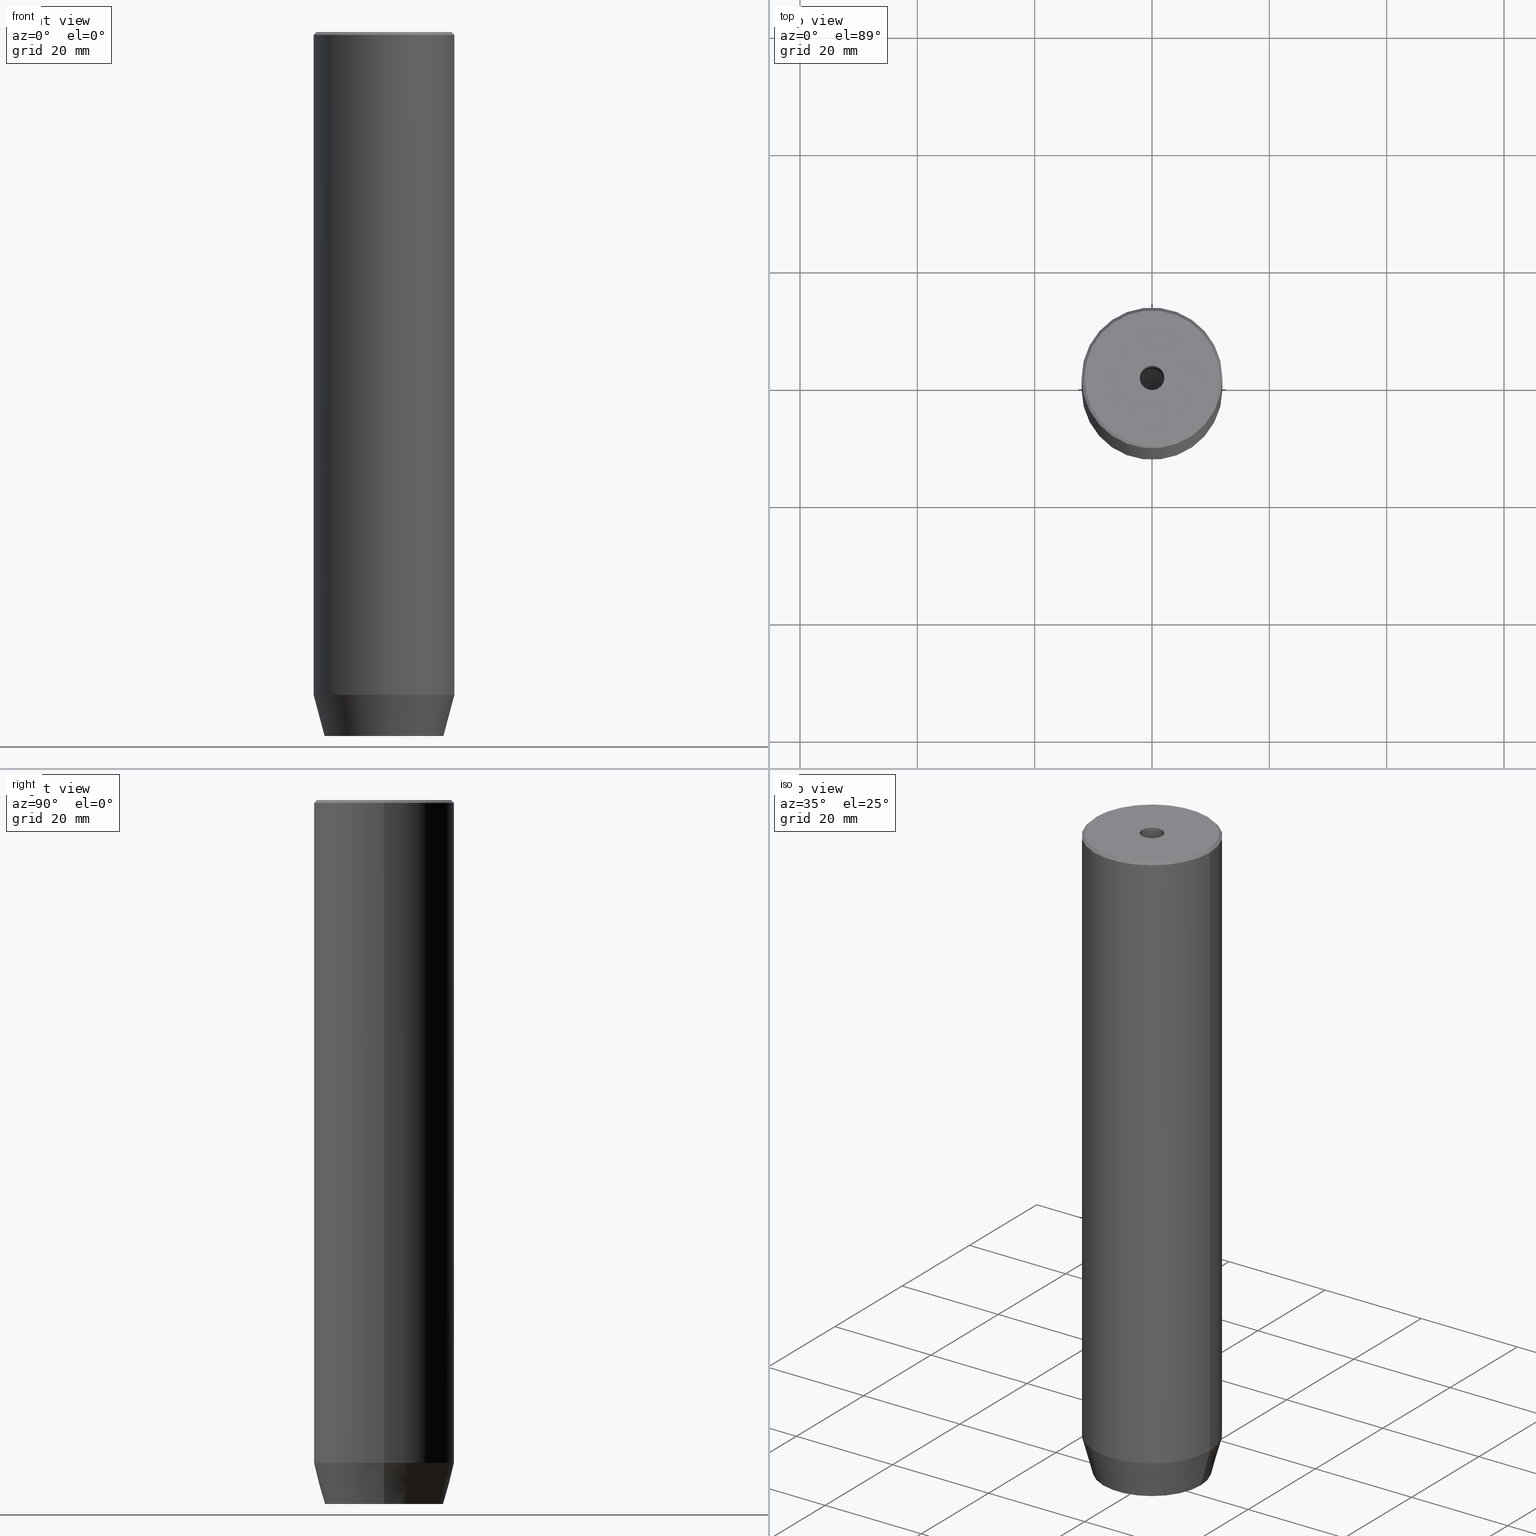
[diagram: canonical four-view strip — front | top / right | iso, engineering-drawing reading convention]
A machine part, canonical four-view strip (front | top / right | iso — engineering-drawing reading convention). The complete STEP part file that produces these views, byte-faithful:
ISO-10303-21;
HEADER;
FILE_DESCRIPTION (( 'STEP AP203' ),
    '1' );
FILE_NAME ('b654.STEP',
    '2024-01-02T17:15:53',
    ( '' ),
    ( '' ),
    'SwSTEP 2.0',
    'SolidWorks 2019',
    '' );
FILE_SCHEMA (( 'CONFIG_CONTROL_DESIGN' ));
ENDSEC;

DATA;
#1 = PLANE ( 'NONE',  #329 ) ;
#2 = CARTESIAN_POINT ( 'NONE',  ( 0.000000000000000000, 4.618802153517006737, -120.0000000000000000 ) ) ;
#3 = CARTESIAN_POINT ( 'NONE',  ( 0.000000000000000000, 0.000000000000000000, -117.2000000000000028 ) ) ;
#4 = DIRECTION ( 'NONE',  ( -0.000000000000000000, -0.000000000000000000, 1.000000000000000000 ) ) ;
#5 = AXIS2_PLACEMENT_3D ( 'NONE', #584, #134, #92 ) ;
#6 = DIRECTION ( 'NONE',  ( 1.000000000000000000, 0.000000000000000000, 0.000000000000000000 ) ) ;
#7 = CONICAL_SURFACE ( 'NONE', #83, 11.50000000000000888, 0.7853981633974344012 ) ;
#8 = EDGE_CURVE ( 'NONE', #54, #171, #131, .T. ) ;
#9 = LINE ( 'NONE', #365, #400 ) ;
#10 = VECTOR ( 'NONE', #221, 1000.000000000000000 ) ;
#11 = DIRECTION ( 'NONE',  ( -0.000000000000000000, -0.000000000000000000, 1.000000000000000000 ) ) ;
#12 = ORIENTED_EDGE ( 'NONE', *, *, #322, .F. ) ;
#13 = DIRECTION ( 'NONE',  ( -0.000000000000000000, -0.000000000000000000, 1.000000000000000000 ) ) ;
#14 = ORIENTED_EDGE ( 'NONE', *, *, #248, .T. ) ;
#15 = EDGE_CURVE ( 'NONE', #577, #171, #419, .T. ) ;
#16 = AXIS2_PLACEMENT_3D ( 'NONE', #269, #205, #402 ) ;
#17 = DIRECTION ( 'NONE',  ( -0.8660254037844384856, 0.5000000000000002220, 0.000000000000000000 ) ) ;
#18 = ORIENTED_EDGE ( 'NONE', *, *, #124, .F. ) ;
#19 = APPROVAL_ROLE ( '' ) ;
#20 = DIRECTION ( 'NONE',  ( 1.000000000000000000, 0.000000000000000000, 0.000000000000000000 ) ) ;
#21 = ORIENTED_EDGE ( 'NONE', *, *, #144, .F. ) ;
#22 = EDGE_CURVE ( 'NONE', #127, #159, #286, .T. ) ;
#23 = CARTESIAN_POINT ( 'NONE',  ( -11.50000000000000888, 0.000000000000000000, 0.000000000000000000 ) ) ;
#24 = ORIENTED_EDGE ( 'NONE', *, *, #284, .T. ) ;
#25 = DATE_TIME_ROLE ( 'creation_date' ) ;
#26 = CARTESIAN_POINT ( 'NONE',  ( 0.000000000000000000, 0.000000000000000000, 0.000000000000000000 ) ) ;
#27 = EDGE_LOOP ( 'NONE', ( #482, #105, #354, #421, #493, #275 ) ) ;
#28 = PERSON_AND_ORGANIZATION ( #65, #413 ) ;
#29 = FACE_OUTER_BOUND ( 'NONE', #113, .T. ) ;
#30 = ORIENTED_EDGE ( 'NONE', *, *, #455, .T. ) ;
#31 = CONICAL_SURFACE ( 'NONE', #193, 2.099999999999994760, 1.029744258676652535 ) ;
#32 = LINE ( 'NONE', #534, #37 ) ;
#33 = ORIENTED_EDGE ( 'NONE', *, *, #444, .F. ) ;
#34 = CC_DESIGN_PERSON_AND_ORGANIZATION_ASSIGNMENT ( #109, #572, ( #231 ) ) ;
#35 = FACE_OUTER_BOUND ( 'NONE', #244, .T. ) ;
#36 = ORIENTED_EDGE ( 'NONE', *, *, #506, .T. ) ;
#37 = VECTOR ( 'NONE', #433, 1000.000000000000000 ) ;
#38 = EDGE_LOOP ( 'NONE', ( #434, #155, #297, #570 ) ) ;
#39 = CC_DESIGN_APPROVAL ( #566, ( #415 ) ) ;
#40 = APPLICATION_PROTOCOL_DEFINITION ( 'international standard', 'config_control_design', 1994, #379 ) ;
#41 = PRODUCT_RELATED_PRODUCT_CATEGORY ( 'detail', '', ( #231 ) ) ;
#42 = DIRECTION ( 'NONE',  ( -0.000000000000000000, -0.000000000000000000, -1.000000000000000000 ) ) ;
#43 = FACE_OUTER_BOUND ( 'NONE', #27, .T. ) ;
#44 = CARTESIAN_POINT ( 'NONE',  ( 0.000000000000000000, 0.000000000000000000, -30.00000000000000000 ) ) ;
#45 = AXIS2_PLACEMENT_3D ( 'NONE', #153, #141, #467 ) ;
#46 = VECTOR ( 'NONE', #423, 1000.000000000000000 ) ;
#47 = AXIS2_PLACEMENT_3D ( 'NONE', #166, #478, #123 ) ;
#48 = DIRECTION ( 'NONE',  ( -0.000000000000000000, -0.000000000000000000, -1.000000000000000000 ) ) ;
#49 = CARTESIAN_POINT ( 'NONE',  ( 2.099999999999994760, 0.000000000000000000, -30.00000000000000000 ) ) ;
#50 = DATE_AND_TIME ( #140, #476 ) ;
#51 = CARTESIAN_POINT ( 'NONE',  ( -2.099999999999994760, 2.571758278209435054E-16, -30.00000000000000000 ) ) ;
#52 = VECTOR ( 'NONE', #48, 1000.000000000000000 ) ;
#53 = DIRECTION ( 'NONE',  ( -0.000000000000000000, -0.000000000000000000, -1.000000000000000000 ) ) ;
#54 = VERTEX_POINT ( 'NONE', #49 ) ;
#55 = APPROVAL_PERSON_ORGANIZATION ( #287, #142, #352 ) ;
#56 = CARTESIAN_POINT ( 'NONE',  ( 2.000000000000000888, -3.464101615137754386, -120.0000000000000000 ) ) ;
#57 = EDGE_CURVE ( 'NONE', #289, #67, #189, .T. ) ;
#58 = ORIENTED_EDGE ( 'NONE', *, *, #64, .F. ) ;
#59 = CARTESIAN_POINT ( 'NONE',  ( 12.00000000000000000, 0.000000000000000000, -112.9999999999999858 ) ) ;
#60 = EDGE_LOOP ( 'NONE', ( #351, #295 ) ) ;
#61 = AXIS2_PLACEMENT_3D ( 'NONE', #44, #449, #90 ) ;
#62 = CARTESIAN_POINT ( 'NONE',  ( 0.000000000000000000, 0.000000000000000000, -1.990051048614449116E-16 ) ) ;
#63 = ORIENTED_EDGE ( 'NONE', *, *, #165, .F. ) ;
#64 = EDGE_CURVE ( 'NONE', #432, #289, #544, .T. ) ;
#65 = PERSON ( 'NEUR�EN�', 'NEUR�EN�', 'NEUR�EN�', ('NEUR�EN�'), ('NEUR�EN�'), ('NEUR�EN�') ) ;
#66 = LINE ( 'NONE', #56, #319 ) ;
#67 = VERTEX_POINT ( 'NONE', #2 ) ;
#68 = CALENDAR_DATE ( 2024, 2, 1 ) ;
#69 = ADVANCED_FACE ( 'NONE', ( #279 ), #320, .F. ) ;
#70 = CARTESIAN_POINT ( 'NONE',  ( -4.000000000000000000, -2.309401076758503368, -120.0000000000000000 ) ) ;
#71 = ORIENTED_EDGE ( 'NONE', *, *, #294, .F. ) ;
#72 = PERSON_AND_ORGANIZATION ( #65, #413 ) ;
#73 = CARTESIAN_POINT ( 'NONE',  ( 2.000000000000000444, 3.464101615137754386, -117.2000000000000028 ) ) ;
#74 = EDGE_LOOP ( 'NONE', ( #535, #257, #475, #152 ) ) ;
#75 = DIRECTION ( 'NONE',  ( 0.5000000000000003331, -0.8660254037844385966, 0.000000000000000000 ) ) ;
#76 = VERTEX_POINT ( 'NONE', #179 ) ;
#77 = EDGE_CURVE ( 'NONE', #171, #54, #345, .T. ) ;
#78 = AXIS2_PLACEMENT_3D ( 'NONE', #164, #349, #6 ) ;
#79 = LINE ( 'NONE', #271, #445 ) ;
#80 = VERTEX_POINT ( 'NONE', #227 ) ;
#81 = DIRECTION ( 'NONE',  ( 0.8660254037844384856, 0.5000000000000002220, 0.000000000000000000 ) ) ;
#82 = ORIENTED_EDGE ( 'NONE', *, *, #192, .T. ) ;
#83 = AXIS2_PLACEMENT_3D ( 'NONE', #291, #555, #112 ) ;
#84 = APPROVAL ( #160, 'NEUR�EN�' ) ;
#85 = LINE ( 'NONE', #232, #448 ) ;
#86 = CARTESIAN_POINT ( 'NONE',  ( 4.000000000000000000, 2.309401076758503368, -117.2000000000000028 ) ) ;
#87 = VECTOR ( 'NONE', #412, 1000.000000000000000 ) ;
#88 = CC_DESIGN_APPROVAL ( #142, ( #377 ) ) ;
#89 = DIRECTION ( 'NONE',  ( 0.8571673007021113344, 0.000000000000000000, 0.5150380749100558209 ) ) ;
#90 = DIRECTION ( 'NONE',  ( 1.000000000000000000, 0.000000000000000000, 0.000000000000000000 ) ) ;
#91 = DIRECTION ( 'NONE',  ( 1.000000000000000000, 0.000000000000000000, -0.000000000000000000 ) ) ;
#92 = DIRECTION ( 'NONE',  ( 1.000000000000000000, 0.000000000000000000, 0.000000000000000000 ) ) ;
#93 = CC_DESIGN_PERSON_AND_ORGANIZATION_ASSIGNMENT ( #28, #156, ( #517 ) ) ;
#94 = LINE ( 'NONE', #86, #52 ) ;
#95 = DESIGN_CONTEXT ( 'detailed design', #245, 'design' ) ;
#96 = CARTESIAN_POINT ( 'NONE',  ( 0.000000000000000000, 0.000000000000000000, -0.5000000000000056621 ) ) ;
#97 = DATE_AND_TIME ( #430, #549 ) ;
#98 = LINE ( 'NONE', #428, #309 ) ;
#99 = EDGE_CURVE ( 'NONE', #362, #76, #137, .T. ) ;
#100 = VECTOR ( 'NONE', #53, 1000.000000000000000 ) ;
#101 = DIRECTION ( 'NONE',  ( 0.000000000000000000, 1.000000000000000000, 0.000000000000000000 ) ) ;
#102 = EDGE_LOOP ( 'NONE', ( #559, #222, #71, #582 ) ) ;
#103 = PRODUCT_DEFINITION_SHAPE ( 'NONE', 'NONE',  #517 ) ;
#104 = LINE ( 'NONE', #243, #484 ) ;
#105 = ORIENTED_EDGE ( 'NONE', *, *, #464, .T. ) ;
#106 = DIRECTION ( 'NONE',  ( -0.000000000000000000, -0.000000000000000000, 1.000000000000000000 ) ) ;
#107 = ORIENTED_EDGE ( 'NONE', *, *, #229, .F. ) ;
#108 = ADVANCED_FACE ( 'NONE', ( #408 ), #458, .T. ) ;
#109 = PERSON_AND_ORGANIZATION ( #65, #413 ) ;
#110 = AXIS2_PLACEMENT_3D ( 'NONE', #281, #191, #505 ) ;
#111 = AXIS2_PLACEMENT_3D ( 'NONE', #313, #126, #489 ) ;
#112 = DIRECTION ( 'NONE',  ( -1.000000000000000000, 0.000000000000000000, 0.000000000000000000 ) ) ;
#113 = EDGE_LOOP ( 'NONE', ( #211, #565, #486, #403 ) ) ;
#114 = APPROVAL_DATE_TIME ( #202, #142 ) ;
#115 = DIRECTION ( 'NONE',  ( 0.8660254037844385966, -0.5000000000000001110, 0.000000000000000000 ) ) ;
#116 = ORIENTED_EDGE ( 'NONE', *, *, #469, .F. ) ;
#117 = COORDINATED_UNIVERSAL_TIME_OFFSET ( 1, 0, .AHEAD. ) ;
#118 = DIRECTION ( 'NONE',  ( 1.000000000000000000, 0.000000000000000000, 0.000000000000000000 ) ) ;
#119 = ORIENTED_EDGE ( 'NONE', *, *, #480, .F. ) ;
#120 = EDGE_CURVE ( 'NONE', #187, #312, #145, .T. ) ;
#121 = DIRECTION ( 'NONE',  ( -0.000000000000000000, -0.000000000000000000, 1.000000000000000000 ) ) ;
#122 = ORIENTED_EDGE ( 'NONE', *, *, #136, .F. ) ;
#123 = DIRECTION ( 'NONE',  ( 0.8660254037844384856, -0.5000000000000002220, 0.000000000000000000 ) ) ;
#124 = EDGE_CURVE ( 'NONE', #177, #80, #9, .T. ) ;
#125 = ORIENTED_EDGE ( 'NONE', *, *, #278, .T. ) ;
#126 = DIRECTION ( 'NONE',  ( -0.000000000000000000, -0.000000000000000000, 1.000000000000000000 ) ) ;
#127 = VERTEX_POINT ( 'NONE', #139 ) ;
#128 = ADVANCED_FACE ( 'NONE', ( #237 ), #250, .T. ) ;
#129 = PLANE ( 'NONE',  #161 ) ;
#130 = FACE_BOUND ( 'NONE', #292, .T. ) ;
#131 = CIRCLE ( 'NONE', #61, 2.099999999999994760 ) ;
#132 = DIRECTION ( 'NONE',  ( 0.000000000000000000, 0.000000000000000000, 1.000000000000000000 ) ) ;
#133 = DIRECTION ( 'NONE',  ( -0.000000000000000000, -0.000000000000000000, 1.000000000000000000 ) ) ;
#134 = DIRECTION ( 'NONE',  ( -0.000000000000000000, -0.000000000000000000, 1.000000000000000000 ) ) ;
#135 = LINE ( 'NONE', #410, #569 ) ;
#136 = EDGE_CURVE ( 'NONE', #393, #342, #94, .T. ) ;
#137 = LINE ( 'NONE', #326, #180 ) ;
#138 = FACE_OUTER_BOUND ( 'NONE', #270, .T. ) ;
#139 = CARTESIAN_POINT ( 'NONE',  ( 4.000000000000000000, -2.309401076758502480, -117.2000000000000028 ) ) ;
#140 = CALENDAR_DATE ( 2024, 2, 1 ) ;
#141 = DIRECTION ( 'NONE',  ( -0.000000000000000000, -0.000000000000000000, 1.000000000000000000 ) ) ;
#142 = APPROVAL ( #212, 'NEUR�EN�' ) ;
#143 = DIRECTION ( 'NONE',  ( 1.000000000000000000, 0.000000000000000000, 0.000000000000000000 ) ) ;
#144 = EDGE_CURVE ( 'NONE', #167, #406, #454, .T. ) ;
#145 = CIRCLE ( 'NONE', #5, 10.12435565298213547 ) ;
#146 = AXIS2_PLACEMENT_3D ( 'NONE', #353, #350, #436 ) ;
#147 = CARTESIAN_POINT ( 'NONE',  ( 4.336808689942017736E-16, -4.618802153517006737, -117.2000000000000028 ) ) ;
#148 = EDGE_LOOP ( 'NONE', ( #18, #360, #533, #125 ) ) ;
#149 = APPROVAL_PERSON_ORGANIZATION ( #548, #84, #19 ) ;
#150 = ADVANCED_FACE ( 'NONE', ( #130, #537 ), #414, .T. ) ;
#151 = DIRECTION ( 'NONE',  ( 0.000000000000000000, -1.000000000000000000, 0.000000000000000000 ) ) ;
#152 = ORIENTED_EDGE ( 'NONE', *, *, #381, .F. ) ;
#153 = CARTESIAN_POINT ( 'NONE',  ( 0.000000000000000000, 0.000000000000000000, -120.0000000000000000 ) ) ;
#154 = EDGE_CURVE ( 'NONE', #80, #468, #538, .T. ) ;
#155 = ORIENTED_EDGE ( 'NONE', *, *, #571, .F. ) ;
#156 = PERSON_AND_ORGANIZATION_ROLE ( 'creator' ) ;
#157 = CIRCLE ( 'NONE', #494, 11.50000000000000888 ) ;
#158 = DIRECTION ( 'NONE',  ( -0.000000000000000000, -0.000000000000000000, -1.000000000000000000 ) ) ;
#159 = VERTEX_POINT ( 'NONE', #241 ) ;
#160 = APPROVAL_STATUS ( 'not_yet_approved' ) ;
#161 = AXIS2_PLACEMENT_3D ( 'NONE', #178, #186, #188 ) ;
#162 = DIRECTION ( 'NONE',  ( -0.000000000000000000, -0.000000000000000000, 1.000000000000000000 ) ) ;
#163 = EDGE_LOOP ( 'NONE', ( #340, #479, #21, #220 ) ) ;
#164 = CARTESIAN_POINT ( 'NONE',  ( 0.000000000000000000, 0.000000000000000000, 0.000000000000000000 ) ) ;
#165 = EDGE_CURVE ( 'NONE', #265, #314, #157, .T. ) ;
#166 = CARTESIAN_POINT ( 'NONE',  ( -2.000000000000000888, -3.464101615137754386, -117.2000000000000028 ) ) ;
#167 = VERTEX_POINT ( 'NONE', #147 ) ;
#168 = PLANE ( 'NONE',  #355 ) ;
#169 = VECTOR ( 'NONE', #417, 1000.000000000000000 ) ;
#170 = VECTOR ( 'NONE', #576, 999.9999999999998863 ) ;
#171 = VERTEX_POINT ( 'NONE', #550 ) ;
#172 = DIRECTION ( 'NONE',  ( 1.000000000000000000, 0.000000000000000000, 0.000000000000000000 ) ) ;
#173 = EDGE_CURVE ( 'NONE', #406, #362, #512, .T. ) ;
#174 = AXIS2_PLACEMENT_3D ( 'NONE', #542, #133, #325 ) ;
#175 = ORIENTED_EDGE ( 'NONE', *, *, #15, .T. ) ;
#176 = DIRECTION ( 'NONE',  ( 1.000000000000000000, 0.000000000000000000, 0.000000000000000000 ) ) ;
#177 = VERTEX_POINT ( 'NONE', #422 ) ;
#178 = CARTESIAN_POINT ( 'NONE',  ( 0.000000000000000000, 0.000000000000000000, 0.000000000000000000 ) ) ;
#179 = CARTESIAN_POINT ( 'NONE',  ( 0.000000000000000000, 4.618802153517006737, -117.2000000000000028 ) ) ;
#180 = VECTOR ( 'NONE', #587, 999.9999999999998863 ) ;
#181 = AXIS2_PLACEMENT_3D ( 'NONE', #474, #195, #20 ) ;
#182 = FACE_OUTER_BOUND ( 'NONE', #60, .T. ) ;
#183 = DIRECTION ( 'NONE',  ( 1.000000000000000000, 0.000000000000000000, 0.000000000000000000 ) ) ;
#184 =( GEOMETRIC_REPRESENTATION_CONTEXT ( 3 ) GLOBAL_UNCERTAINTY_ASSIGNED_CONTEXT ( ( #230 ) ) GLOBAL_UNIT_ASSIGNED_CONTEXT ( ( #273, #498, #503 ) ) REPRESENTATION_CONTEXT ( 'NONE', 'WORKASPACE' ) );
#185 = EDGE_CURVE ( 'NONE', #127, #167, #378, .T. ) ;
#186 = DIRECTION ( 'NONE',  ( 0.000000000000000000, -0.000000000000000000, 1.000000000000000000 ) ) ;
#187 = VERTEX_POINT ( 'NONE', #382 ) ;
#188 = DIRECTION ( 'NONE',  ( 1.000000000000000000, 0.000000000000000000, 0.000000000000000000 ) ) ;
#189 = LINE ( 'NONE', #324, #461 ) ;
#190 = AXIS2_PLACEMENT_3D ( 'NONE', #457, #546, #330 ) ;
#191 = DIRECTION ( 'NONE',  ( -0.000000000000000000, -0.000000000000000000, 1.000000000000000000 ) ) ;
#192 = EDGE_CURVE ( 'NONE', #265, #468, #98, .T. ) ;
#193 = AXIS2_PLACEMENT_3D ( 'NONE', #416, #323, #366 ) ;
#194 = LOCAL_TIME ( 18, 15, 53.00000000000000000, #258 ) ;
#195 = DIRECTION ( 'NONE',  ( 0.000000000000000000, 0.000000000000000000, -1.000000000000000000 ) ) ;
#196 = ORIENTED_EDGE ( 'NONE', *, *, #259, .T. ) ;
#197 = CARTESIAN_POINT ( 'NONE',  ( 2.000000000000000888, -3.464101615137754386, -117.2000000000000028 ) ) ;
#198 = ORIENTED_EDGE ( 'NONE', *, *, #438, .F. ) ;
#199 = CIRCLE ( 'NONE', #346, 2.099999999999998757 ) ;
#200 = VECTOR ( 'NONE', #529, 1000.000000000000000 ) ;
#201 = FACE_OUTER_BOUND ( 'NONE', #74, .T. ) ;
#202 = DATE_AND_TIME ( #528, #194 ) ;
#203 = CARTESIAN_POINT ( 'NONE',  ( -2.099999999999996980, 2.571758278209438013E-16, 0.000000000000000000 ) ) ;
#204 = ORIENTED_EDGE ( 'NONE', *, *, #327, .F. ) ;
#205 = DIRECTION ( 'NONE',  ( -0.5000000000000000000, 0.8660254037844387076, 0.000000000000000000 ) ) ;
#206 = ORIENTED_EDGE ( 'NONE', *, *, #427, .F. ) ;
#207 = DATE_AND_TIME ( #562, #488 ) ;
#208 = AXIS2_PLACEMENT_3D ( 'NONE', #368, #239, #543 ) ;
#209 = CONICAL_SURFACE ( 'NONE', #328, 12.00000000000000000, 0.2617993877991500740 ) ;
#210 = FACE_OUTER_BOUND ( 'NONE', #399, .T. ) ;
#211 = ORIENTED_EDGE ( 'NONE', *, *, #284, .F. ) ;
#212 = APPROVAL_STATUS ( 'not_yet_approved' ) ;
#213 = ADVANCED_BREP_SHAPE_REPRESENTATION ( 'b654', ( #527, #78 ), #184 ) ;
#214 = CONICAL_SURFACE ( 'NONE', #174, 2.099999999999994760, 1.029744258676652535 ) ;
#215 = CYLINDRICAL_SURFACE ( 'NONE', #310, 2.099999999999996980 ) ;
#216 = ORIENTED_EDGE ( 'NONE', *, *, #57, .T. ) ;
#217 = LINE ( 'NONE', #398, #170 ) ;
#218 = ORIENTED_EDGE ( 'NONE', *, *, #541, .T. ) ;
#219 = CARTESIAN_POINT ( 'NONE',  ( 0.000000000000000000, 0.000000000000000000, -112.9999999999999858 ) ) ;
#220 = ORIENTED_EDGE ( 'NONE', *, *, #571, .T. ) ;
#221 = DIRECTION ( 'NONE',  ( -0.2588190451025213501, 3.169619151431772337E-17, 0.9659258262890680902 ) ) ;
#222 = ORIENTED_EDGE ( 'NONE', *, *, #22, .F. ) ;
#223 = APPROVAL_PERSON_ORGANIZATION ( #560, #566, #344 ) ;
#224 = CARTESIAN_POINT ( 'NONE',  ( 0.000000000000000000, 0.000000000000000000, 0.000000000000000000 ) ) ;
#225 = DIRECTION ( 'NONE',  ( 0.000000000000000000, 1.000000000000000000, 0.000000000000000000 ) ) ;
#226 = CARTESIAN_POINT ( 'NONE',  ( 4.336808689942017736E-16, -4.618802153517006737, -120.0000000000000000 ) ) ;
#227 = CARTESIAN_POINT ( 'NONE',  ( -12.00000000000000000, 1.469576158976823947E-15, -0.5000000000000056621 ) ) ;
#228 = CLOSED_SHELL ( 'NONE', ( #264, #547, #238, #128, #356, #150, #551, #108, #335, #338, #363, #69, #397, #409, #575, #369, #509, #557, #387 ) ) ;
#229 = EDGE_CURVE ( 'NONE', #312, #187, #554, .T. ) ;
#230 = UNCERTAINTY_MEASURE_WITH_UNIT (LENGTH_MEASURE( 1.000000000000000082E-05 ), #273, 'distance_accuracy_value', 'NONE');
#231 = PRODUCT ( 'b654', 'b654', '', ( #375 ) ) ;
#232 = CARTESIAN_POINT ( 'NONE',  ( 4.336808689942017736E-16, -4.618802153517006737, -117.2000000000000028 ) ) ;
#233 = CIRCLE ( 'NONE', #507, 2.099999999999998757 ) ;
#234 = DIRECTION ( 'NONE',  ( -0.8660254037844384856, 0.5000000000000002220, 0.000000000000000000 ) ) ;
#235 = CC_DESIGN_APPROVAL ( #84, ( #517 ) ) ;
#236 = LINE ( 'NONE', #539, #10 ) ;
#237 = FACE_OUTER_BOUND ( 'NONE', #337, .T. ) ;
#238 = ADVANCED_FACE ( 'NONE', ( #288 ), #7, .T. ) ;
#239 = DIRECTION ( 'NONE',  ( -0.000000000000000000, -0.000000000000000000, 1.000000000000000000 ) ) ;
#240 = VECTOR ( 'NONE', #388, 1000.000000000000114 ) ;
#241 = CARTESIAN_POINT ( 'NONE',  ( 4.000000000000000000, -2.309401076758502480, -120.0000000000000000 ) ) ;
#242 = VECTOR ( 'NONE', #115, 1000.000000000000000 ) ;
#243 = CARTESIAN_POINT ( 'NONE',  ( 4.000000000000000000, 0.000000000000000000, -117.2000000000000028 ) ) ;
#244 = EDGE_LOOP ( 'NONE', ( #520, #447, #253, #206 ) ) ;
#245 = APPLICATION_CONTEXT ( 'configuration controlled 3d designs of mechanical parts and assemblies' ) ;
#246 = CARTESIAN_POINT ( 'NONE',  ( 4.000000000000000000, 0.000000000000000000, -120.0000000000000000 ) ) ;
#247 = ORIENTED_EDGE ( 'NONE', *, *, #405, .T. ) ;
#248 = EDGE_CURVE ( 'NONE', #261, #380, #199, .T. ) ;
#249 = COORDINATED_UNIVERSAL_TIME_OFFSET ( 1, 0, .AHEAD. ) ;
#250 = CONICAL_SURFACE ( 'NONE', #110, 12.00000000000000000, 0.2617993877991500740 ) ;
#251 = CIRCLE ( 'NONE', #384, 12.00000000000000000 ) ;
#252 = LINE ( 'NONE', #203, #495 ) ;
#253 = ORIENTED_EDGE ( 'NONE', *, *, #154, .T. ) ;
#254 = VECTOR ( 'NONE', #89, 1000.000000000000000 ) ;
#255 = APPLICATION_PROTOCOL_DEFINITION ( 'international standard', 'config_control_design', 1994, #245 ) ;
#256 = CARTESIAN_POINT ( 'NONE',  ( -2.099999999999998757, 2.571758278209440478E-16, -1.990051048614449116E-16 ) ) ;
#257 = ORIENTED_EDGE ( 'NONE', *, *, #229, .T. ) ;
#258 = COORDINATED_UNIVERSAL_TIME_OFFSET ( 1, 0, .AHEAD. ) ;
#259 = EDGE_CURVE ( 'NONE', #76, #67, #339, .T. ) ;
#260 = CYLINDRICAL_SURFACE ( 'NONE', #401, 12.00000000000000000 ) ;
#261 = VERTEX_POINT ( 'NONE', #256 ) ;
#262 = APPROVAL_STATUS ( 'not_yet_approved' ) ;
#263 = CARTESIAN_POINT ( 'NONE',  ( 2.099999999999998757, 0.000000000000000000, -1.990051048614449116E-16 ) ) ;
#264 = ADVANCED_FACE ( 'NONE', ( #299 ), #420, .F. ) ;
#265 = VERTEX_POINT ( 'NONE', #341 ) ;
#266 = FACE_OUTER_BOUND ( 'NONE', #390, .T. ) ;
#267 = ORIENTED_EDGE ( 'NONE', *, *, #278, .F. ) ;
#268 = CC_DESIGN_PERSON_AND_ORGANIZATION_ASSIGNMENT ( #331, #473, ( #415 ) ) ;
#269 = CARTESIAN_POINT ( 'NONE',  ( -2.000000000000000000, 3.464101615137754830, -117.2000000000000028 ) ) ;
#270 = EDGE_LOOP ( 'NONE', ( #580, #36, #383 ) ) ;
#271 = CARTESIAN_POINT ( 'NONE',  ( -4.000000000000000000, 2.309401076758503368, -117.2000000000000028 ) ) ;
#272 = ORIENTED_EDGE ( 'NONE', *, *, #57, .F. ) ;
#273 =( LENGTH_UNIT ( ) NAMED_UNIT ( * ) SI_UNIT ( .MILLI., .METRE. ) );
#274 = AXIS2_PLACEMENT_3D ( 'NONE', #224, #317, #277 ) ;
#275 = ORIENTED_EDGE ( 'NONE', *, *, #173, .T. ) ;
#276 = CC_DESIGN_SECURITY_CLASSIFICATION ( #377, ( #415 ) ) ;
#277 = DIRECTION ( 'NONE',  ( 1.000000000000000000, 0.000000000000000000, 0.000000000000000000 ) ) ;
#278 = EDGE_CURVE ( 'NONE', #468, #80, #472, .T. ) ;
#279 = FACE_OUTER_BOUND ( 'NONE', #437, .T. ) ;
#280 = DIRECTION ( 'NONE',  ( -0.000000000000000000, -0.000000000000000000, -1.000000000000000000 ) ) ;
#281 = CARTESIAN_POINT ( 'NONE',  ( 0.000000000000000000, 0.000000000000000000, -112.9999999999999858 ) ) ;
#282 = FACE_BOUND ( 'NONE', #540, .T. ) ;
#283 = CARTESIAN_POINT ( 'NONE',  ( -2.000000000000000888, -3.464101615137754386, -117.2000000000000028 ) ) ;
#284 = EDGE_CURVE ( 'NONE', #171, #261, #252, .T. ) ;
#285 = FACE_OUTER_BOUND ( 'NONE', #102, .T. ) ;
#286 = LINE ( 'NONE', #411, #483 ) ;
#287 = PERSON_AND_ORGANIZATION ( #65, #413 ) ;
#288 = FACE_OUTER_BOUND ( 'NONE', #490, .T. ) ;
#289 = VERTEX_POINT ( 'NONE', #296 ) ;
#290 = AXIS2_PLACEMENT_3D ( 'NONE', #73, #315, #392 ) ;
#291 = CARTESIAN_POINT ( 'NONE',  ( 0.000000000000000000, 0.000000000000000000, 0.000000000000000000 ) ) ;
#292 = EDGE_LOOP ( 'NONE', ( #272, #58, #204, #334, #523, #556 ) ) ;
#293 = CARTESIAN_POINT ( 'NONE',  ( -10.12435565298213547, 1.354726066681111050E-15, -120.0000000000000000 ) ) ;
#294 = EDGE_CURVE ( 'NONE', #393, #127, #104, .T. ) ;
#295 = ORIENTED_EDGE ( 'NONE', *, *, #165, .T. ) ;
#296 = CARTESIAN_POINT ( 'NONE',  ( -4.000000000000000000, 2.309401076758503368, -120.0000000000000000 ) ) ;
#297 = ORIENTED_EDGE ( 'NONE', *, *, #185, .F. ) ;
#298 = APPROVAL_DATE_TIME ( #97, #566 ) ;
#299 = FACE_OUTER_BOUND ( 'NONE', #526, .T. ) ;
#300 = ORIENTED_EDGE ( 'NONE', *, *, #64, .T. ) ;
#301 = PERSON_AND_ORGANIZATION ( #65, #413 ) ;
#302 = EDGE_CURVE ( 'NONE', #159, #518, #66, .T. ) ;
#303 = CARTESIAN_POINT ( 'NONE',  ( 12.00000000000000000, 0.000000000000000000, -112.9999999999999858 ) ) ;
#304 = ORIENTED_EDGE ( 'NONE', *, *, #120, .T. ) ;
#305 = APPROVAL_DATE_TIME ( #207, #84 ) ;
#306 = EDGE_CURVE ( 'NONE', #342, #159, #431, .T. ) ;
#307 = PLANE ( 'NONE',  #16 ) ;
#308 = EDGE_LOOP ( 'NONE', ( #216, #442, #463, #30 ) ) ;
#309 = VECTOR ( 'NONE', #561, 999.9999999999998863 ) ;
#310 = AXIS2_PLACEMENT_3D ( 'NONE', #579, #121, #172 ) ;
#311 = CARTESIAN_POINT ( 'NONE',  ( -4.000000000000000000, -2.309401076758503368, -117.2000000000000028 ) ) ;
#312 = VERTEX_POINT ( 'NONE', #293 ) ;
#313 = CARTESIAN_POINT ( 'NONE',  ( 0.000000000000000000, 0.000000000000000000, -112.9999999999999858 ) ) ;
#314 = VERTEX_POINT ( 'NONE', #23 ) ;
#315 = DIRECTION ( 'NONE',  ( 0.5000000000000001110, 0.8660254037844385966, -0.000000000000000000 ) ) ;
#316 = ORIENTED_EDGE ( 'NONE', *, *, #491, .T. ) ;
#317 = DIRECTION ( 'NONE',  ( -0.000000000000000000, -0.000000000000000000, 1.000000000000000000 ) ) ;
#318 = AXIS2_PLACEMENT_3D ( 'NONE', #321, #371, #132 ) ;
#319 = VECTOR ( 'NONE', #552, 1000.000000000000114 ) ;
#320 = PLANE ( 'NONE',  #318 ) ;
#321 = CARTESIAN_POINT ( 'NONE',  ( -4.000000000000000000, 0.000000000000000000, -117.2000000000000028 ) ) ;
#322 = EDGE_CURVE ( 'NONE', #187, #386, #511, .T. ) ;
#323 = DIRECTION ( 'NONE',  ( -0.000000000000000000, -0.000000000000000000, 1.000000000000000000 ) ) ;
#324 = CARTESIAN_POINT ( 'NONE',  ( -2.000000000000000000, 3.464101615137754830, -120.0000000000000000 ) ) ;
#325 = DIRECTION ( 'NONE',  ( 1.000000000000000000, 0.000000000000000000, 0.000000000000000000 ) ) ;
#326 = CARTESIAN_POINT ( 'NONE',  ( -2.000000000000000000, 3.464101615137754830, -117.2000000000000028 ) ) ;
#327 = EDGE_CURVE ( 'NONE', #518, #432, #376, .T. ) ;
#328 = AXIS2_PLACEMENT_3D ( 'NONE', #516, #162, #446 ) ;
#329 = AXIS2_PLACEMENT_3D ( 'NONE', #3, #404, #583 ) ;
#330 = DIRECTION ( 'NONE',  ( -1.000000000000000000, 0.000000000000000000, -0.000000000000000000 ) ) ;
#331 = PERSON_AND_ORGANIZATION ( #65, #413 ) ;
#332 = DIRECTION ( 'NONE',  ( 1.000000000000000000, 0.000000000000000000, 0.000000000000000000 ) ) ;
#333 = CARTESIAN_POINT ( 'NONE',  ( 0.000000000000000000, 0.000000000000000000, 0.000000000000000000 ) ) ;
#334 = ORIENTED_EDGE ( 'NONE', *, *, #302, .F. ) ;
#335 = ADVANCED_FACE ( 'NONE', ( #201 ), #209, .T. ) ;
#336 = CARTESIAN_POINT ( 'NONE',  ( 0.000000000000000000, 4.618802153517006737, -117.2000000000000028 ) ) ;
#337 = EDGE_LOOP ( 'NONE', ( #304, #316, #33, #12 ) ) ;
#338 = ADVANCED_FACE ( 'NONE', ( #266 ), #453, .T. ) ;
#339 = LINE ( 'NONE', #336, #100 ) ;
#340 = ORIENTED_EDGE ( 'NONE', *, *, #327, .T. ) ;
#341 = CARTESIAN_POINT ( 'NONE',  ( 11.50000000000000888, 1.438959988998140752E-15, 0.000000000000000000 ) ) ;
#342 = VERTEX_POINT ( 'NONE', #441 ) ;
#343 = CC_DESIGN_DATE_AND_TIME_ASSIGNMENT ( #50, #25, ( #517 ) ) ;
#344 = APPROVAL_ROLE ( '' ) ;
#345 = CIRCLE ( 'NONE', #424, 2.099999999999994760 ) ;
#346 = AXIS2_PLACEMENT_3D ( 'NONE', #62, #11, #332 ) ;
#347 = CARTESIAN_POINT ( 'NONE',  ( 2.000000000000000444, 3.464101615137754386, -117.2000000000000028 ) ) ;
#348 = ORIENTED_EDGE ( 'NONE', *, *, #173, .F. ) ;
#349 = DIRECTION ( 'NONE',  ( 0.000000000000000000, 0.000000000000000000, 1.000000000000000000 ) ) ;
#350 = DIRECTION ( 'NONE',  ( 0.000000000000000000, 0.000000000000000000, -1.000000000000000000 ) ) ;
#351 = ORIENTED_EDGE ( 'NONE', *, *, #469, .T. ) ;
#352 = APPROVAL_ROLE ( '' ) ;
#353 = CARTESIAN_POINT ( 'NONE',  ( 0.000000000000000000, 0.000000000000000000, 0.000000000000000000 ) ) ;
#354 = ORIENTED_EDGE ( 'NONE', *, *, #294, .T. ) ;
#355 = AXIS2_PLACEMENT_3D ( 'NONE', #485, #75, #81 ) ;
#356 = ADVANCED_FACE ( 'NONE', ( #35 ), #260, .T. ) ;
#357 = CARTESIAN_POINT ( 'NONE',  ( 4.000000000000000000, 2.309401076758503368, -117.2000000000000028 ) ) ;
#358 = ORIENTED_EDGE ( 'NONE', *, *, #506, .F. ) ;
#359 = LINE ( 'NONE', #439, #200 ) ;
#360 = ORIENTED_EDGE ( 'NONE', *, *, #381, .T. ) ;
#361 = LINE ( 'NONE', #581, #87 ) ;
#362 = VERTEX_POINT ( 'NONE', #563 ) ;
#363 = ADVANCED_FACE ( 'NONE', ( #568 ), #307, .F. ) ;
#364 = CARTESIAN_POINT ( 'NONE',  ( -7.656934449090954900E-15, 0.000000000000000000, -31.26180729995787289 ) ) ;
#365 = CARTESIAN_POINT ( 'NONE',  ( -12.00000000000000000, 1.469576158976823947E-15, 0.000000000000000000 ) ) ;
#366 = DIRECTION ( 'NONE',  ( 1.000000000000000000, 0.000000000000000000, 0.000000000000000000 ) ) ;
#367 = AXIS2_PLACEMENT_3D ( 'NONE', #372, #91, #452 ) ;
#368 = CARTESIAN_POINT ( 'NONE',  ( 0.000000000000000000, 0.000000000000000000, 0.000000000000000000 ) ) ;
#369 = ADVANCED_FACE ( 'NONE', ( #210 ), #481, .F. ) ;
#370 = DIRECTION ( 'NONE',  ( -0.000000000000000000, -0.000000000000000000, 1.000000000000000000 ) ) ;
#371 = DIRECTION ( 'NONE',  ( -1.000000000000000000, 0.000000000000000000, 0.000000000000000000 ) ) ;
#372 = CARTESIAN_POINT ( 'NONE',  ( 4.000000000000000000, 0.000000000000000000, -117.2000000000000028 ) ) ;
#373 = DIRECTION ( 'NONE',  ( 0.8660254037844387076, 0.5000000000000001110, 0.000000000000000000 ) ) ;
#374 = CIRCLE ( 'NONE', #111, 12.00000000000000000 ) ;
#375 = MECHANICAL_CONTEXT ( 'NONE', #379, 'mechanical' ) ;
#376 = LINE ( 'NONE', #462, #504 ) ;
#377 = SECURITY_CLASSIFICATION ( '', '', #524 ) ;
#378 = LINE ( 'NONE', #197, #240 ) ;
#379 = APPLICATION_CONTEXT ( 'configuration controlled 3d designs of mechanical parts and assemblies' ) ;
#380 = VERTEX_POINT ( 'NONE', #263 ) ;
#381 = EDGE_CURVE ( 'NONE', #177, #386, #251, .T. ) ;
#382 = CARTESIAN_POINT ( 'NONE',  ( 10.12435565298213547, 0.000000000000000000, -120.0000000000000000 ) ) ;
#383 = ORIENTED_EDGE ( 'NONE', *, *, #8, .T. ) ;
#384 = AXIS2_PLACEMENT_3D ( 'NONE', #219, #531, #522 ) ;
#385 = DIRECTION ( 'NONE',  ( 0.000000000000000000, -1.000000000000000000, 0.000000000000000000 ) ) ;
#386 = VERTEX_POINT ( 'NONE', #303 ) ;
#387 = ADVANCED_FACE ( 'NONE', ( #29 ), #215, .F. ) ;
#388 = DIRECTION ( 'NONE',  ( -0.8660254037844384856, -0.5000000000000002220, 0.000000000000000000 ) ) ;
#389 = LINE ( 'NONE', #347, #242 ) ;
#390 = EDGE_LOOP ( 'NONE', ( #471, #116, #530, #267 ) ) ;
#391 = COORDINATED_UNIVERSAL_TIME_OFFSET ( 1, 0, .AHEAD. ) ;
#392 = DIRECTION ( 'NONE',  ( -0.8660254037844385966, 0.5000000000000001110, 0.000000000000000000 ) ) ;
#393 = VERTEX_POINT ( 'NONE', #357 ) ;
#394 = COORDINATED_UNIVERSAL_TIME_OFFSET ( 1, 0, .AHEAD. ) ;
#395 = FACE_OUTER_BOUND ( 'NONE', #163, .T. ) ;
#396 = ORIENTED_EDGE ( 'NONE', *, *, #501, .F. ) ;
#397 = ADVANCED_FACE ( 'NONE', ( #395 ), #573, .F. ) ;
#398 = CARTESIAN_POINT ( 'NONE',  ( -11.50000000000000888, 0.000000000000000000, 0.000000000000000000 ) ) ;
#399 = EDGE_LOOP ( 'NONE', ( #247, #122, #553, #196 ) ) ;
#400 = VECTOR ( 'NONE', #4, 1000.000000000000000 ) ;
#401 = AXIS2_PLACEMENT_3D ( 'NONE', #26, #525, #118 ) ;
#402 = DIRECTION ( 'NONE',  ( -0.8660254037844385966, -0.4999999999999999445, 0.000000000000000000 ) ) ;
#403 = ORIENTED_EDGE ( 'NONE', *, *, #501, .T. ) ;
#404 = DIRECTION ( 'NONE',  ( 0.000000000000000000, 0.000000000000000000, -1.000000000000000000 ) ) ;
#405 = EDGE_CURVE ( 'NONE', #67, #342, #359, .T. ) ;
#406 = VERTEX_POINT ( 'NONE', #311 ) ;
#407 = DIRECTION ( 'NONE',  ( -0.000000000000000000, -0.000000000000000000, 1.000000000000000000 ) ) ;
#408 = FACE_OUTER_BOUND ( 'NONE', #148, .T. ) ;
#409 = ADVANCED_FACE ( 'NONE', ( #492 ), #168, .F. ) ;
#410 = CARTESIAN_POINT ( 'NONE',  ( 2.099999999999996980, 0.000000000000000000, 0.000000000000000000 ) ) ;
#411 = CARTESIAN_POINT ( 'NONE',  ( 4.000000000000000000, -2.309401076758502480, -117.2000000000000028 ) ) ;
#412 = DIRECTION ( 'NONE',  ( -0.000000000000000000, -0.000000000000000000, -1.000000000000000000 ) ) ;
#413 = ORGANIZATION ( 'NEUR�EN�', 'NEUR�EN�', '' ) ;
#414 = PLANE ( 'NONE',  #190 ) ;
#415 = PRODUCT_DEFINITION_FORMATION_WITH_SPECIFIED_SOURCE ( 'LIBOVOLN�', '', #231, .NOT_KNOWN. ) ;
#416 = CARTESIAN_POINT ( 'NONE',  ( 0.000000000000000000, 0.000000000000000000, -30.00000000000000000 ) ) ;
#417 = DIRECTION ( 'NONE',  ( -0.8571673007021113344, 1.049727191138617463E-16, 0.5150380749100558209 ) ) ;
#418 = AXIS2_PLACEMENT_3D ( 'NONE', #96, #497, #143 ) ;
#419 = LINE ( 'NONE', #51, #169 ) ;
#420 = CYLINDRICAL_SURFACE ( 'NONE', #567, 2.099999999999996980 ) ;
#421 = ORIENTED_EDGE ( 'NONE', *, *, #185, .T. ) ;
#422 = CARTESIAN_POINT ( 'NONE',  ( -12.00000000000000000, 1.469576158976823947E-15, -112.9999999999999858 ) ) ;
#423 = DIRECTION ( 'NONE',  ( 0.2588190451025213501, 0.000000000000000000, 0.9659258262890680902 ) ) ;
#424 = AXIS2_PLACEMENT_3D ( 'NONE', #451, #502, #183 ) ;
#425 = ORIENTED_EDGE ( 'NONE', *, *, #120, .F. ) ;
#426 = VECTOR ( 'NONE', #385, 1000.000000000000000 ) ;
#427 = EDGE_CURVE ( 'NONE', #386, #468, #32, .T. ) ;
#428 = CARTESIAN_POINT ( 'NONE',  ( 11.50000000000000888, 1.408343819019457359E-15, 0.000000000000000000 ) ) ;
#429 = ORIENTED_EDGE ( 'NONE', *, *, #455, .F. ) ;
#430 = CALENDAR_DATE ( 2024, 2, 1 ) ;
#431 = LINE ( 'NONE', #246, #426 ) ;
#432 = VERTEX_POINT ( 'NONE', #70 ) ;
#433 = DIRECTION ( 'NONE',  ( -0.000000000000000000, -0.000000000000000000, 1.000000000000000000 ) ) ;
#434 = ORIENTED_EDGE ( 'NONE', *, *, #302, .T. ) ;
#435 = DATE_TIME_ROLE ( 'classification_date' ) ;
#436 = DIRECTION ( 'NONE',  ( -1.000000000000000000, 0.000000000000000000, 0.000000000000000000 ) ) ;
#437 = EDGE_LOOP ( 'NONE', ( #300, #429, #348, #218 ) ) ;
#438 = EDGE_CURVE ( 'NONE', #314, #80, #217, .T. ) ;
#439 = CARTESIAN_POINT ( 'NONE',  ( 2.000000000000000444, 3.464101615137754386, -120.0000000000000000 ) ) ;
#440 = ORIENTED_EDGE ( 'NONE', *, *, #77, .F. ) ;
#441 = CARTESIAN_POINT ( 'NONE',  ( 4.000000000000000000, 2.309401076758503368, -120.0000000000000000 ) ) ;
#442 = ORIENTED_EDGE ( 'NONE', *, *, #259, .F. ) ;
#443 = VECTOR ( 'NONE', #234, 1000.000000000000114 ) ;
#444 = EDGE_CURVE ( 'NONE', #386, #177, #374, .T. ) ;
#445 = VECTOR ( 'NONE', #158, 1000.000000000000000 ) ;
#446 = DIRECTION ( 'NONE',  ( 1.000000000000000000, 0.000000000000000000, 0.000000000000000000 ) ) ;
#447 = ORIENTED_EDGE ( 'NONE', *, *, #124, .T. ) ;
#448 = VECTOR ( 'NONE', #280, 1000.000000000000000 ) ;
#449 = DIRECTION ( 'NONE',  ( -0.000000000000000000, -0.000000000000000000, 1.000000000000000000 ) ) ;
#450 = CARTESIAN_POINT ( 'NONE',  ( 2.099999999999994760, 0.000000000000000000, -30.00000000000000000 ) ) ;
#451 = CARTESIAN_POINT ( 'NONE',  ( 0.000000000000000000, 0.000000000000000000, -30.00000000000000000 ) ) ;
#452 = DIRECTION ( 'NONE',  ( -0.000000000000000000, 0.000000000000000000, -1.000000000000000000 ) ) ;
#453 = CONICAL_SURFACE ( 'NONE', #146, 11.50000000000000888, 0.7853981633974344012 ) ;
#454 = LINE ( 'NONE', #283, #443 ) ;
#455 = EDGE_CURVE ( 'NONE', #362, #289, #79, .T. ) ;
#456 = LOCAL_TIME ( 18, 15, 53.00000000000000000, #394 ) ;
#457 = CARTESIAN_POINT ( 'NONE',  ( 0.000000000000000000, 10.12435565298213547, -120.0000000000000000 ) ) ;
#458 = CYLINDRICAL_SURFACE ( 'NONE', #208, 12.00000000000000000 ) ;
#459 = CC_DESIGN_PERSON_AND_ORGANIZATION_ASSIGNMENT ( #301, #477, ( #415 ) ) ;
#460 = SHAPE_DEFINITION_REPRESENTATION ( #103, #213 ) ;
#461 = VECTOR ( 'NONE', #373, 999.9999999999998863 ) ;
#462 = CARTESIAN_POINT ( 'NONE',  ( -2.000000000000000888, -3.464101615137754386, -120.0000000000000000 ) ) ;
#463 = ORIENTED_EDGE ( 'NONE', *, *, #99, .F. ) ;
#464 = EDGE_CURVE ( 'NONE', #76, #393, #389, .T. ) ;
#465 = DIRECTION ( 'NONE',  ( -0.000000000000000000, -0.000000000000000000, 1.000000000000000000 ) ) ;
#466 = EDGE_LOOP ( 'NONE', ( #425, #107 ) ) ;
#467 = DIRECTION ( 'NONE',  ( 1.000000000000000000, 0.000000000000000000, 0.000000000000000000 ) ) ;
#468 = VERTEX_POINT ( 'NONE', #545 ) ;
#469 = EDGE_CURVE ( 'NONE', #314, #265, #487, .T. ) ;
#470 = DIRECTION ( 'NONE',  ( 1.000000000000000000, 0.000000000000000000, 0.000000000000000000 ) ) ;
#471 = ORIENTED_EDGE ( 'NONE', *, *, #192, .F. ) ;
#472 = CIRCLE ( 'NONE', #181, 12.00000000000000000 ) ;
#473 = PERSON_AND_ORGANIZATION_ROLE ( 'design_supplier' ) ;
#474 = CARTESIAN_POINT ( 'NONE',  ( 0.000000000000000000, 0.000000000000000000, -0.5000000000000056621 ) ) ;
#475 = ORIENTED_EDGE ( 'NONE', *, *, #322, .T. ) ;
#476 = LOCAL_TIME ( 18, 15, 53.00000000000000000, #391 ) ;
#477 = PERSON_AND_ORGANIZATION_ROLE ( 'creator' ) ;
#478 = DIRECTION ( 'NONE',  ( -0.5000000000000003331, -0.8660254037844385966, 0.000000000000000000 ) ) ;
#479 = ORIENTED_EDGE ( 'NONE', *, *, #541, .F. ) ;
#480 = EDGE_CURVE ( 'NONE', #54, #380, #135, .T. ) ;
#481 = PLANE ( 'NONE',  #290 ) ;
#482 = ORIENTED_EDGE ( 'NONE', *, *, #99, .T. ) ;
#483 = VECTOR ( 'NONE', #42, 1000.000000000000000 ) ;
#484 = VECTOR ( 'NONE', #151, 1000.000000000000000 ) ;
#485 = CARTESIAN_POINT ( 'NONE',  ( 2.000000000000000888, -3.464101615137754386, -117.2000000000000028 ) ) ;
#486 = ORIENTED_EDGE ( 'NONE', *, *, #480, .T. ) ;
#487 = CIRCLE ( 'NONE', #274, 11.50000000000000888 ) ;
#488 = LOCAL_TIME ( 18, 15, 53.00000000000000000, #117 ) ;
#489 = DIRECTION ( 'NONE',  ( 1.000000000000000000, 0.000000000000000000, 0.000000000000000000 ) ) ;
#490 = EDGE_LOOP ( 'NONE', ( #63, #82, #508, #198 ) ) ;
#491 = EDGE_CURVE ( 'NONE', #312, #177, #236, .T. ) ;
#492 = FACE_OUTER_BOUND ( 'NONE', #38, .T. ) ;
#493 = ORIENTED_EDGE ( 'NONE', *, *, #144, .T. ) ;
#494 = AXIS2_PLACEMENT_3D ( 'NONE', #333, #13, #519 ) ;
#495 = VECTOR ( 'NONE', #106, 1000.000000000000000 ) ;
#496 = LINE ( 'NONE', #450, #254 ) ;
#497 = DIRECTION ( 'NONE',  ( 0.000000000000000000, 0.000000000000000000, -1.000000000000000000 ) ) ;
#498 =( NAMED_UNIT ( * ) PLANE_ANGLE_UNIT ( ) SI_UNIT ( $, .RADIAN. ) );
#499 = CARTESIAN_POINT ( 'NONE',  ( -4.000000000000000000, 0.000000000000000000, -120.0000000000000000 ) ) ;
#500 = PLANE ( 'NONE',  #367 ) ;
#501 = EDGE_CURVE ( 'NONE', #380, #261, #233, .T. ) ;
#502 = DIRECTION ( 'NONE',  ( -0.000000000000000000, -0.000000000000000000, 1.000000000000000000 ) ) ;
#503 =( NAMED_UNIT ( * ) SI_UNIT ( $, .STERADIAN. ) SOLID_ANGLE_UNIT ( ) );
#504 = VECTOR ( 'NONE', #17, 1000.000000000000114 ) ;
#505 = DIRECTION ( 'NONE',  ( 1.000000000000000000, 0.000000000000000000, 0.000000000000000000 ) ) ;
#506 = EDGE_CURVE ( 'NONE', #577, #54, #496, .T. ) ;
#507 = AXIS2_PLACEMENT_3D ( 'NONE', #586, #370, #176 ) ;
#508 = ORIENTED_EDGE ( 'NONE', *, *, #154, .F. ) ;
#509 = ADVANCED_FACE ( 'NONE', ( #43 ), #1, .T. ) ;
#510 = DATE_AND_TIME ( #68, #456 ) ;
#511 = LINE ( 'NONE', #59, #46 ) ;
#512 = LINE ( 'NONE', #558, #564 ) ;
#513 = EDGE_LOOP ( 'NONE', ( #358, #175, #574 ) ) ;
#514 = CARTESIAN_POINT ( 'NONE',  ( 0.000000000000000000, 0.000000000000000000, 0.000000000000000000 ) ) ;
#515 = ORIENTED_EDGE ( 'NONE', *, *, #248, .F. ) ;
#516 = CARTESIAN_POINT ( 'NONE',  ( 0.000000000000000000, 0.000000000000000000, -112.9999999999999858 ) ) ;
#517 = PRODUCT_DEFINITION ( 'NEZN�M�', '', #415, #95 ) ;
#518 = VERTEX_POINT ( 'NONE', #226 ) ;
#519 = DIRECTION ( 'NONE',  ( 1.000000000000000000, 0.000000000000000000, 0.000000000000000000 ) ) ;
#520 = ORIENTED_EDGE ( 'NONE', *, *, #444, .T. ) ;
#521 = PERSON_AND_ORGANIZATION_ROLE ( 'classification_officer' ) ;
#522 = DIRECTION ( 'NONE',  ( 1.000000000000000000, 0.000000000000000000, 0.000000000000000000 ) ) ;
#523 = ORIENTED_EDGE ( 'NONE', *, *, #306, .F. ) ;
#524 = SECURITY_CLASSIFICATION_LEVEL ( 'unclassified' ) ;
#525 = DIRECTION ( 'NONE',  ( -0.000000000000000000, -0.000000000000000000, 1.000000000000000000 ) ) ;
#526 = EDGE_LOOP ( 'NONE', ( #440, #24, #14, #119 ) ) ;
#527 = MANIFOLD_SOLID_BREP ( 'Vrt�k z�vitn�ku pro M5 z�vit1', #228 ) ;
#528 = CALENDAR_DATE ( 2024, 2, 1 ) ;
#529 = DIRECTION ( 'NONE',  ( 0.8660254037844385966, -0.5000000000000001110, 0.000000000000000000 ) ) ;
#530 = ORIENTED_EDGE ( 'NONE', *, *, #438, .T. ) ;
#531 = DIRECTION ( 'NONE',  ( -0.000000000000000000, -0.000000000000000000, 1.000000000000000000 ) ) ;
#532 = CC_DESIGN_PERSON_AND_ORGANIZATION_ASSIGNMENT ( #72, #521, ( #377 ) ) ;
#533 = ORIENTED_EDGE ( 'NONE', *, *, #427, .T. ) ;
#534 = CARTESIAN_POINT ( 'NONE',  ( 12.00000000000000000, 0.000000000000000000, 0.000000000000000000 ) ) ;
#535 = ORIENTED_EDGE ( 'NONE', *, *, #491, .F. ) ;
#536 = FACE_OUTER_BOUND ( 'NONE', #513, .T. ) ;
#537 = FACE_OUTER_BOUND ( 'NONE', #466, .T. ) ;
#538 = CIRCLE ( 'NONE', #418, 12.00000000000000000 ) ;
#539 = CARTESIAN_POINT ( 'NONE',  ( -12.00000000000000000, 1.469576158976823947E-15, -112.9999999999999858 ) ) ;
#540 = EDGE_LOOP ( 'NONE', ( #396, #515 ) ) ;
#541 = EDGE_CURVE ( 'NONE', #406, #432, #361, .T. ) ;
#542 = CARTESIAN_POINT ( 'NONE',  ( 0.000000000000000000, 0.000000000000000000, -30.00000000000000000 ) ) ;
#543 = DIRECTION ( 'NONE',  ( 1.000000000000000000, 0.000000000000000000, 0.000000000000000000 ) ) ;
#544 = LINE ( 'NONE', #499, #578 ) ;
#545 = CARTESIAN_POINT ( 'NONE',  ( 12.00000000000000000, 0.000000000000000000, -0.5000000000000056621 ) ) ;
#546 = DIRECTION ( 'NONE',  ( 0.000000000000000000, 0.000000000000000000, -1.000000000000000000 ) ) ;
#547 = ADVANCED_FACE ( 'NONE', ( #536 ), #214, .F. ) ;
#548 = PERSON_AND_ORGANIZATION ( #65, #413 ) ;
#549 = LOCAL_TIME ( 18, 15, 53.00000000000000000, #249 ) ;
#550 = CARTESIAN_POINT ( 'NONE',  ( -2.099999999999994760, 2.571758278209435054E-16, -30.00000000000000000 ) ) ;
#551 = ADVANCED_FACE ( 'NONE', ( #282, #182 ), #129, .T. ) ;
#552 = DIRECTION ( 'NONE',  ( -0.8660254037844384856, -0.5000000000000002220, 0.000000000000000000 ) ) ;
#553 = ORIENTED_EDGE ( 'NONE', *, *, #464, .F. ) ;
#554 = CIRCLE ( 'NONE', #45, 10.12435565298213547 ) ;
#555 = DIRECTION ( 'NONE',  ( 0.000000000000000000, 0.000000000000000000, -1.000000000000000000 ) ) ;
#556 = ORIENTED_EDGE ( 'NONE', *, *, #405, .F. ) ;
#557 = ADVANCED_FACE ( 'NONE', ( #138 ), #31, .F. ) ;
#558 = CARTESIAN_POINT ( 'NONE',  ( -4.000000000000000000, 0.000000000000000000, -117.2000000000000028 ) ) ;
#559 = ORIENTED_EDGE ( 'NONE', *, *, #306, .T. ) ;
#560 = PERSON_AND_ORGANIZATION ( #65, #413 ) ;
#561 = DIRECTION ( 'NONE',  ( 0.7071067811865376918, 8.659560562354813296E-17, -0.7071067811865574537 ) ) ;
#562 = CALENDAR_DATE ( 2024, 2, 1 ) ;
#563 = CARTESIAN_POINT ( 'NONE',  ( -4.000000000000000000, 2.309401076758503368, -117.2000000000000028 ) ) ;
#564 = VECTOR ( 'NONE', #101, 1000.000000000000000 ) ;
#565 = ORIENTED_EDGE ( 'NONE', *, *, #8, .F. ) ;
#566 = APPROVAL ( #262, 'NEUR�EN�' ) ;
#567 = AXIS2_PLACEMENT_3D ( 'NONE', #514, #465, #470 ) ;
#568 = FACE_OUTER_BOUND ( 'NONE', #308, .T. ) ;
#569 = VECTOR ( 'NONE', #407, 1000.000000000000000 ) ;
#570 = ORIENTED_EDGE ( 'NONE', *, *, #22, .T. ) ;
#571 = EDGE_CURVE ( 'NONE', #167, #518, #85, .T. ) ;
#572 = PERSON_AND_ORGANIZATION_ROLE ( 'design_owner' ) ;
#573 = PLANE ( 'NONE',  #47 ) ;
#574 = ORIENTED_EDGE ( 'NONE', *, *, #77, .T. ) ;
#575 = ADVANCED_FACE ( 'NONE', ( #285 ), #500, .F. ) ;
#576 = DIRECTION ( 'NONE',  ( -0.7071067811865376918, 0.000000000000000000, -0.7071067811865574537 ) ) ;
#577 = VERTEX_POINT ( 'NONE', #364 ) ;
#578 = VECTOR ( 'NONE', #225, 1000.000000000000000 ) ;
#579 = CARTESIAN_POINT ( 'NONE',  ( 0.000000000000000000, 0.000000000000000000, 0.000000000000000000 ) ) ;
#580 = ORIENTED_EDGE ( 'NONE', *, *, #15, .F. ) ;
#581 = CARTESIAN_POINT ( 'NONE',  ( -4.000000000000000000, -2.309401076758503368, -117.2000000000000028 ) ) ;
#582 = ORIENTED_EDGE ( 'NONE', *, *, #136, .T. ) ;
#583 = DIRECTION ( 'NONE',  ( -1.000000000000000000, 0.000000000000000000, -0.000000000000000000 ) ) ;
#584 = CARTESIAN_POINT ( 'NONE',  ( 0.000000000000000000, 0.000000000000000000, -120.0000000000000000 ) ) ;
#585 = CC_DESIGN_DATE_AND_TIME_ASSIGNMENT ( #510, #435, ( #377 ) ) ;
#586 = CARTESIAN_POINT ( 'NONE',  ( 0.000000000000000000, 0.000000000000000000, -1.990051048614449116E-16 ) ) ;
#587 = DIRECTION ( 'NONE',  ( 0.8660254037844387076, 0.5000000000000001110, 0.000000000000000000 ) ) ;
ENDSEC;
END-ISO-10303-21;
